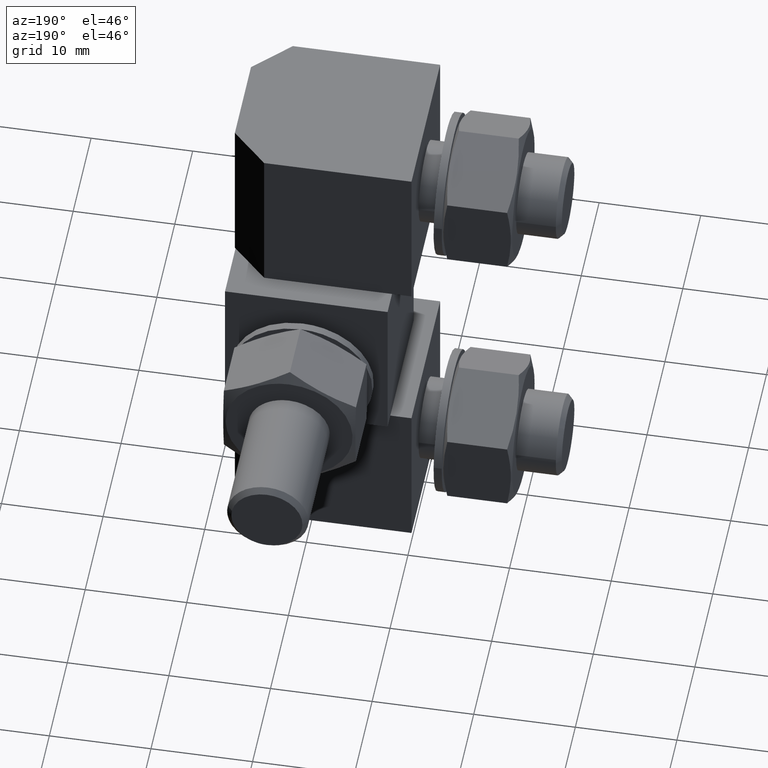
[diagram: clean part render]
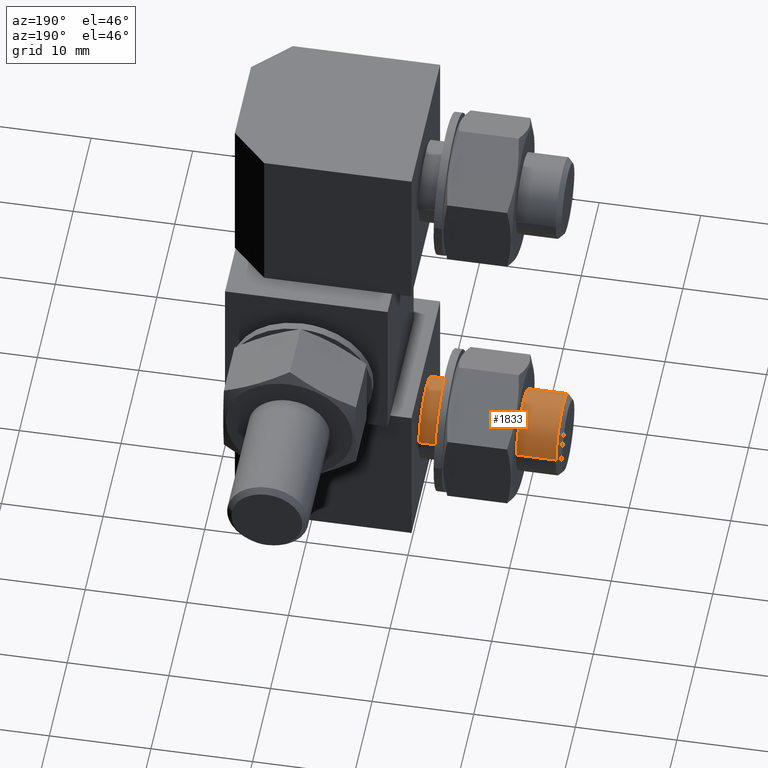
[diagram: same view with one face highlighted and labeled with its STEP entity id]
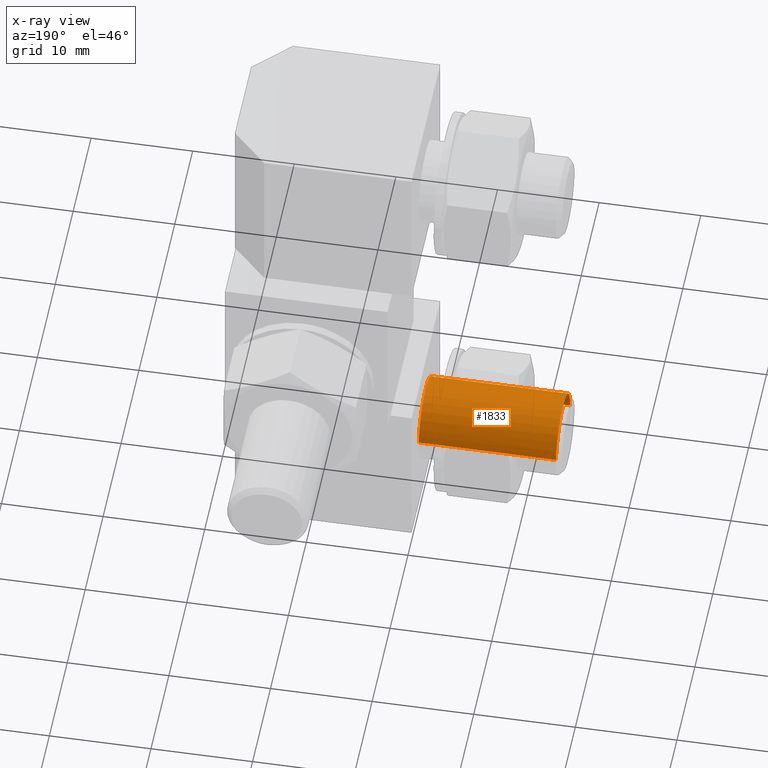
[diagram: x-ray of the same camera — body ghosted, the highlighted face saturated]
A machine part, auxiliary view. The second image highlights one B-rep face of the part: STEP entity #1833.
The next image is the same camera in x-ray: the body ghosted, the highlighted face saturated — about 0% of this face is hidden behind the body in this view.
In plain terms, the highlighted face is a freeform B-spline surface patch.
Its self-contained STEP definition (entity closure, byte-faithful):
#1647=CARTESIAN_POINT('',(-23.500001139938799,-3.999847882238752,7.965094236280362));
#1648=VERTEX_POINT('',#1647);
#1662=CARTESIAN_POINT('',(-23.500001139938799,9.947598E-014,12.000000569969520));
#1663=VERTEX_POINT('',#1662);
#1664=CARTESIAN_POINT('',(-23.500001139938799,9.947598E-014,12.000000569969520));
#1665=CARTESIAN_POINT('',(-23.500001139938796,-4.000000189989721,12.000000569969520));
#1666=CARTESIAN_POINT('',(-23.500001139938799,-4.000000189989720,8.000000379979699));
#1667=CARTESIAN_POINT('',(-23.500001139938803,-4.000000189989720,7.982546975820010));
#1668=CARTESIAN_POINT('',(-23.500001139938799,-3.999847882238753,7.965094236280363));
#1676=(BOUNDED_CURVE()B_SPLINE_CURVE(2,(#1664,#1665,#1666,#1667,#1668),.UNSPECIFIED.,.F.,.U.)B_SPLINE_CURVE_WITH_KNOTS((3,2,3),(0.0,0.250000000000000,0.251539894339205),.UNSPECIFIED.)CURVE()GEOMETRIC_REPRESENTATION_ITEM()RATIONAL_B_SPLINE_CURVE((1.0,0.707106781186548,1.0,0.998195901561431,0.996414028090645))REPRESENTATION_ITEM(''));
#1677=EDGE_CURVE('',#1663,#1648,#1676,.T.);
#1679=CARTESIAN_POINT('',(-23.500001139937378,2.295938399029653,11.275464986381611));
#1680=VERTEX_POINT('',#1679);
#1681=CARTESIAN_POINT('',(-23.500001139937382,2.295938399029654,11.275464986381607));
#1682=CARTESIAN_POINT('',(-23.500001139938799,1.262291041117801,12.000000569969526));
#1683=CARTESIAN_POINT('',(-23.500001139938799,9.947598E-014,12.000000569969520));
#1691=(BOUNDED_CURVE()B_SPLINE_CURVE(2,(#1681,#1682,#1683),.UNSPECIFIED.,.F.,.U.)B_SPLINE_CURVE_WITH_KNOTS((3,3),(0.901326273794635,1.0),.UNSPECIFIED.)CURVE()GEOMETRIC_REPRESENTATION_ITEM()RATIONAL_B_SPLINE_CURVE((0.860049271924642,0.884396538877574,1.0))REPRESENTATION_ITEM(''));
#1692=EDGE_CURVE('',#1680,#1663,#1691,.T.);
#1730=CARTESIAN_POINT('',(-23.500001139938810,3.969065295683563,8.496510398524759));
#1731=VERTEX_POINT('',#1730);
#1732=CARTESIAN_POINT('',(-23.500001139938814,3.969065295683563,8.496510398524757));
#1733=CARTESIAN_POINT('',(-23.500001139938799,3.748829385033068,10.257060391835434));
#1734=CARTESIAN_POINT('',(-23.500001139937375,2.295938399029653,11.275464986381607));
#1742=(BOUNDED_CURVE()B_SPLINE_CURVE(2,(#1732,#1733,#1734),.UNSPECIFIED.,.F.,.U.)B_SPLINE_CURVE_WITH_KNOTS((3,3),(0.771473843422968,0.901326273794634),.UNSPECIFIED.)CURVE()GEOMETRIC_REPRESENTATION_ITEM()RATIONAL_B_SPLINE_CURVE((0.954005596289864,0.828008809804402,0.860049271924641))REPRESENTATION_ITEM(''));
#1743=EDGE_CURVE('',#1731,#1680,#1742,.T.);
#1762=CARTESIAN_POINT('',(-23.837501156562908,3.976075834642602,8.440468886277914));
#1763=CARTESIAN_POINT('',(-23.837501156562908,3.972579071323332,8.468421645053688));
#1764=CARTESIAN_POINT('',(-23.837501156562915,3.526925200052947,12.030931893448457));
#1765=CARTESIAN_POINT('',(-23.837501156562912,-0.034906143651349,11.999848262218970));
#1766=CARTESIAN_POINT('',(-23.837501156562904,-4.034754025890619,11.964942118567519));
#1767=CARTESIAN_POINT('',(-23.837501156562904,-3.999611595732408,7.938018484474698));
#1768=CARTESIAN_POINT('',(-23.837501156562904,-3.999376630564700,7.911094143079646));
#1769=CARTESIAN_POINT('',(-9.654062957934785,3.976075834642602,8.440468886277914));
#1770=CARTESIAN_POINT('',(-9.654062957934785,3.972579071323332,8.468421645053688));
#1771=CARTESIAN_POINT('',(-9.654062957934787,3.526925200052947,12.030931893448457));
#1772=CARTESIAN_POINT('',(-9.654062957934787,-0.034906143651349,11.999848262218970));
#1773=CARTESIAN_POINT('',(-9.654062957934787,-4.034754025890619,11.964942118567519));
#1774=CARTESIAN_POINT('',(-9.654062957934784,-3.999611595732408,7.938018484474698));
#1775=CARTESIAN_POINT('',(-9.654062957934784,-3.999376630564700,7.911094143079646));
#1783=(BOUNDED_SURFACE()B_SPLINE_SURFACE(2,1,((#1762,#1769),(#1763,#1770),(#1764,#1771),(#1765,#1772),(#1766,#1773),(#1767,#1774),(#1768,#1775)),.UNSPECIFIED.,.F.,.F.,.U.)B_SPLINE_SURFACE_WITH_KNOTS((3,1,2,1,3),(2,2),(0.0,0.063630556955771,6.160854484690332,12.788271797445290,12.851895038860000),(0.0,14.183438198628130),.UNSPECIFIED.)GEOMETRIC_REPRESENTATION_ITEM()RATIONAL_B_SPLINE_SURFACE(((0.961610445789247,0.961610445789247),(0.959248281989953,0.959248281989953),(0.730538238691624,0.730538238691624),(1.0,1.0),(0.707106781186548,0.707106781186548),(1.002811776456786,1.002811776456786),(1.005623552913572,1.005623552913572)))REPRESENTATION_ITEM('')SURFACE());
#1784=ORIENTED_EDGE('',*,*,#1743,.T.);
#1785=ORIENTED_EDGE('',*,*,#1692,.T.);
#1786=ORIENTED_EDGE('',*,*,#1677,.T.);
#1787=CARTESIAN_POINT('',(-10.000000474974501,-3.999847882238802,7.965094236286022));
#1788=VERTEX_POINT('',#1787);
#1789=CARTESIAN_POINT('',(-23.500001139938799,-3.999847882238752,7.965094236280362));
#1790=CARTESIAN_POINT('',(-10.000000474974501,-3.999847882238802,7.965094236286022));
#1791=QUASI_UNIFORM_CURVE('',1,(#1789,#1790),.UNSPECIFIED.,.F.,.U.);
#1792=EDGE_CURVE('',#1648,#1788,#1791,.T.);
#1793=ORIENTED_EDGE('',*,*,#1792,.T.);
#1794=CARTESIAN_POINT('',(-10.000000474974501,9.947598E-014,12.000000569969520));
#1795=VERTEX_POINT('',#1794);
#1796=CARTESIAN_POINT('',(-10.000000474974499,-3.999847882238802,7.965094236286022));
#1797=CARTESIAN_POINT('',(-10.000000474974497,-4.000000189989721,7.982546975825668));
#1798=CARTESIAN_POINT('',(-10.000000474974501,-4.000000189989720,8.000000379979699));
#1799=CARTESIAN_POINT('',(-10.000000474974499,-4.000000189989721,12.000000569969520));
#1800=CARTESIAN_POINT('',(-10.000000474974501,9.947598E-014,12.000000569969520));
#1808=(BOUNDED_CURVE()B_SPLINE_CURVE(2,(#1796,#1797,#1798,#1799,#1800),.UNSPECIFIED.,.F.,.U.)B_SPLINE_CURVE_WITH_KNOTS((3,2,3),(0.248460105661294,0.250000000000000,0.500000000000000),.UNSPECIFIED.)CURVE()GEOMETRIC_REPRESENTATION_ITEM()RATIONAL_B_SPLINE_CURVE((0.996414028091798,0.998195901562015,1.0,0.707106781186548,1.0))REPRESENTATION_ITEM(''));
#1809=EDGE_CURVE('',#1788,#1795,#1808,.T.);
#1810=ORIENTED_EDGE('',*,*,#1809,.T.);
#1811=CARTESIAN_POINT('',(-10.000000474974501,3.969065853821406,8.496505936751980));
#1812=VERTEX_POINT('',#1811);
#1813=CARTESIAN_POINT('',(-10.000000474974501,9.947598E-014,12.000000569969520));
#1814=CARTESIAN_POINT('',(-10.000000474974499,3.530800373338553,12.000000569969522));
#1815=CARTESIAN_POINT('',(-10.000000474974499,3.969065853821406,8.496505936751980));
#1823=(BOUNDED_CURVE()B_SPLINE_CURVE(2,(#1813,#1814,#1815),.UNSPECIFIED.,.F.,.U.)B_SPLINE_CURVE_WITH_KNOTS((3,3),(0.500000000000000,0.728526346158174),.UNSPECIFIED.)CURVE()GEOMETRIC_REPRESENTATION_ITEM()RATIONAL_B_SPLINE_CURVE((1.0,0.732264731560221,0.954005964194207))REPRESENTATION_ITEM(''));
#1824=EDGE_CURVE('',#1795,#1812,#1823,.T.);
#1825=ORIENTED_EDGE('',*,*,#1824,.T.);
#1826=CARTESIAN_POINT('',(-23.500001139938810,3.969065295683563,8.496510398524759));
#1827=CARTESIAN_POINT('',(-10.000000474974501,3.969065853821406,8.496505936751980));
#1828=QUASI_UNIFORM_CURVE('',1,(#1826,#1827),.UNSPECIFIED.,.F.,.U.);
#1829=EDGE_CURVE('',#1731,#1812,#1828,.T.);
#1830=ORIENTED_EDGE('',*,*,#1829,.F.);
#1831=EDGE_LOOP('',(#1784,#1785,#1786,#1793,#1810,#1825,#1830));
#1832=FACE_OUTER_BOUND('',#1831,.T.);
#1833=ADVANCED_FACE('',(#1832),#1783,.T.);